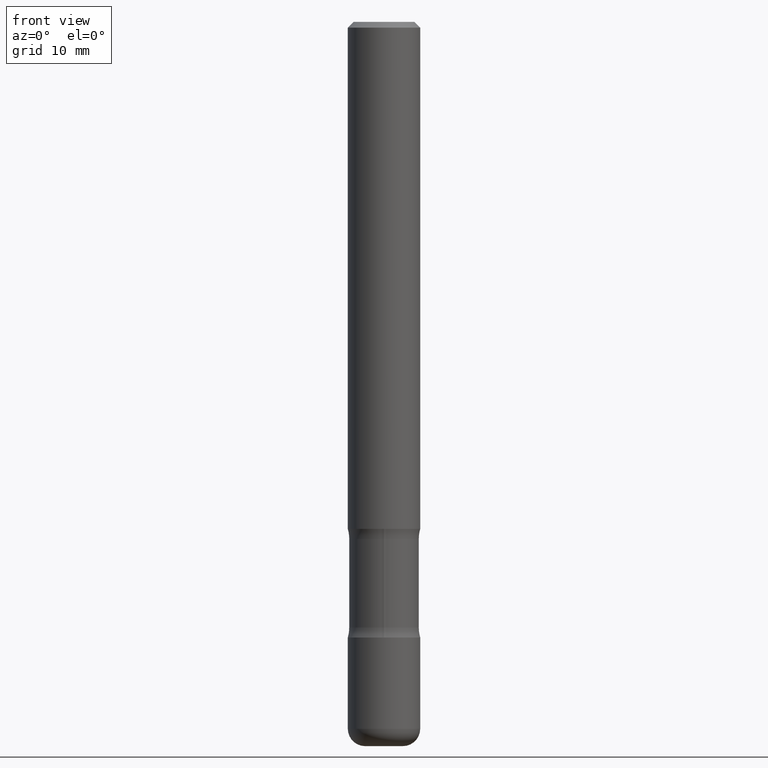
[diagram: clean part render]
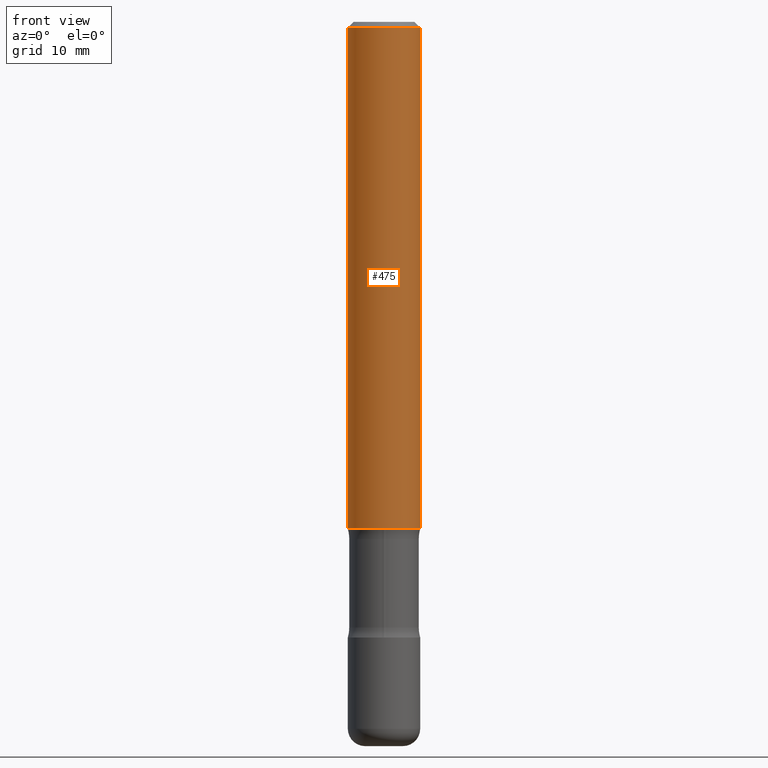
[diagram: same view with one face highlighted and labeled with its STEP entity id]
A machine part, front view. The second image highlights one B-rep face of the part: STEP entity #475.
In plain terms, the highlighted cylindrical surface (edge-blend (fillet) strip) has radius 3.175 mm, axis along (-0, 0, 1).
Its self-contained STEP definition (entity closure, byte-faithful):
#3 = ORIENTED_EDGE ( 'NONE', *, *, #608, .T. ) ;
#30 = CARTESIAN_POINT ( 'NONE',  ( -0.1249999999999996947, 8.030407079339179699E-16, -0.02000000000000007674 ) ) ;
#66 = VERTEX_POINT ( 'NONE', #387 ) ;
#88 = DIRECTION ( 'NONE',  ( -2.445468806185136877E-29, 3.491481338843145188E-15, 1.000000000000000000 ) ) ;
#124 = VERTEX_POINT ( 'NONE', #333 ) ;
#149 = LINE ( 'NONE', #725, #236 ) ;
#160 = AXIS2_PLACEMENT_3D ( 'NONE', #198, #518, #765 ) ;
#172 = CIRCLE ( 'NONE', #789, 0.1249999999999996947 ) ;
#174 = VERTEX_POINT ( 'NONE', #30 ) ;
#196 = VERTEX_POINT ( 'NONE', #404 ) ;
#198 = CARTESIAN_POINT ( 'NONE',  ( 0.000000000000000000, 0.000000000000000000, 0.000000000000000000 ) ) ;
#236 = VECTOR ( 'NONE', #538, 39.37007874015748143 ) ;
#275 = EDGE_LOOP ( 'NONE', ( #317, #615, #3, #430 ) ) ;
#296 = AXIS2_PLACEMENT_3D ( 'NONE', #795, #495, #561 ) ;
#300 = EDGE_CURVE ( 'NONE', #196, #124, #553, .T. ) ;
#317 = ORIENTED_EDGE ( 'NONE', *, *, #752, .F. ) ;
#331 = CARTESIAN_POINT ( 'NONE',  ( 0.1249999999999998612, -8.728703347107823527E-16, 6.095220969744912735E-30 ) ) ;
#333 = CARTESIAN_POINT ( 'NONE',  ( 0.1250000000000000278, -6.982962677686288799E-15, -1.750000000000000222 ) ) ;
#382 = FACE_OUTER_BOUND ( 'NONE', #275, .T. ) ;
#387 = CARTESIAN_POINT ( 'NONE',  ( 0.1249999999999996947, -9.273918764983025741E-16, -0.02000000000000007674 ) ) ;
#403 = DIRECTION ( 'NONE',  ( -2.445468806185136597E-29, 3.491481338843145583E-15, 1.000000000000000000 ) ) ;
#404 = CARTESIAN_POINT ( 'NONE',  ( -0.1250000000000000278, -2.201782565176054414E-15, -1.750000000000000222 ) ) ;
#430 = ORIENTED_EDGE ( 'NONE', *, *, #585, .F. ) ;
#475 = ADVANCED_FACE ( 'NONE', ( #382 ), #626, .T. ) ;
#495 = DIRECTION ( 'NONE',  ( -2.445468806185136597E-29, 3.491481338843145583E-15, 1.000000000000000000 ) ) ;
#500 = VECTOR ( 'NONE', #88, 39.37007874015748143 ) ;
#518 = DIRECTION ( 'NONE',  ( -2.445468806185136597E-29, 3.491481338843145583E-15, 1.000000000000000000 ) ) ;
#533 = CARTESIAN_POINT ( 'NONE',  ( 4.890937612370292426E-31, -6.982962677686317493E-17, -0.02000000000000007674 ) ) ;
#538 = DIRECTION ( 'NONE',  ( -2.445468806185136877E-29, 3.491481338843145188E-15, 1.000000000000000000 ) ) ;
#553 = CIRCLE ( 'NONE', #296, 0.1250000000000000278 ) ;
#561 = DIRECTION ( 'NONE',  ( 1.000000000000000000, -6.982962677686269077E-15, 0.000000000000000000 ) ) ;
#585 = EDGE_CURVE ( 'NONE', #174, #66, #172, .T. ) ;
#608 = EDGE_CURVE ( 'NONE', #124, #66, #655, .T. ) ;
#615 = ORIENTED_EDGE ( 'NONE', *, *, #300, .T. ) ;
#626 = CYLINDRICAL_SURFACE ( 'NONE', #160, 0.1249999999999998612 ) ;
#655 = LINE ( 'NONE', #331, #500 ) ;
#725 = CARTESIAN_POINT ( 'NONE',  ( -0.1249999999999998612, 8.881784197001242463E-16, -6.148668862818625221E-30 ) ) ;
#752 = EDGE_CURVE ( 'NONE', #196, #174, #149, .T. ) ;
#765 = DIRECTION ( 'NONE',  ( 1.000000000000000000, -6.982962677686266711E-15, 4.876176775795935793E-29 ) ) ;
#780 = DIRECTION ( 'NONE',  ( 1.000000000000000000, -6.982962677686266711E-15, 0.000000000000000000 ) ) ;
#789 = AXIS2_PLACEMENT_3D ( 'NONE', #533, #403, #780 ) ;
#795 = CARTESIAN_POINT ( 'NONE',  ( 4.279570410823989044E-29, -6.110092342975505460E-15, -1.750000000000000222 ) ) ;